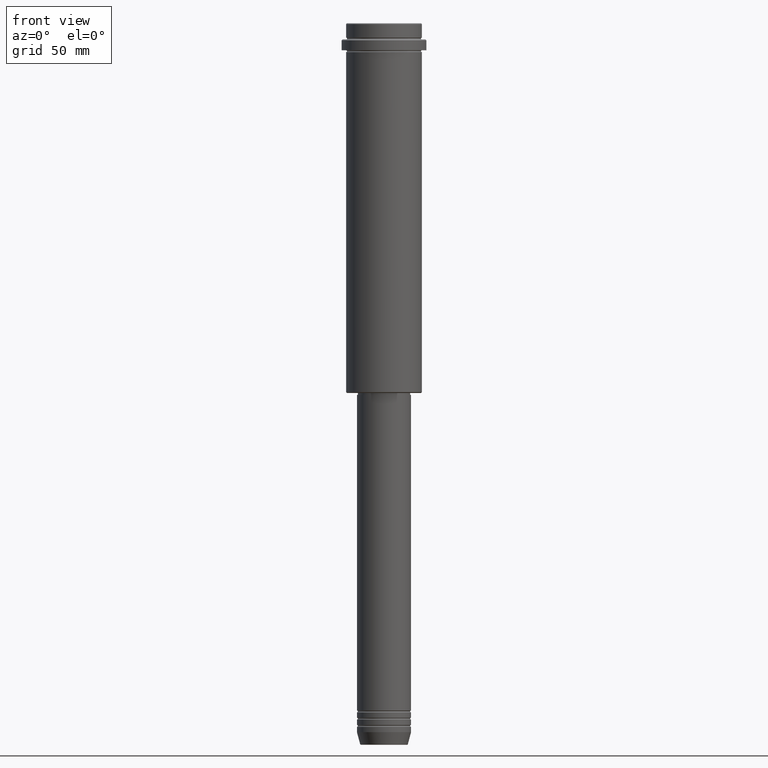
[diagram: clean part render]
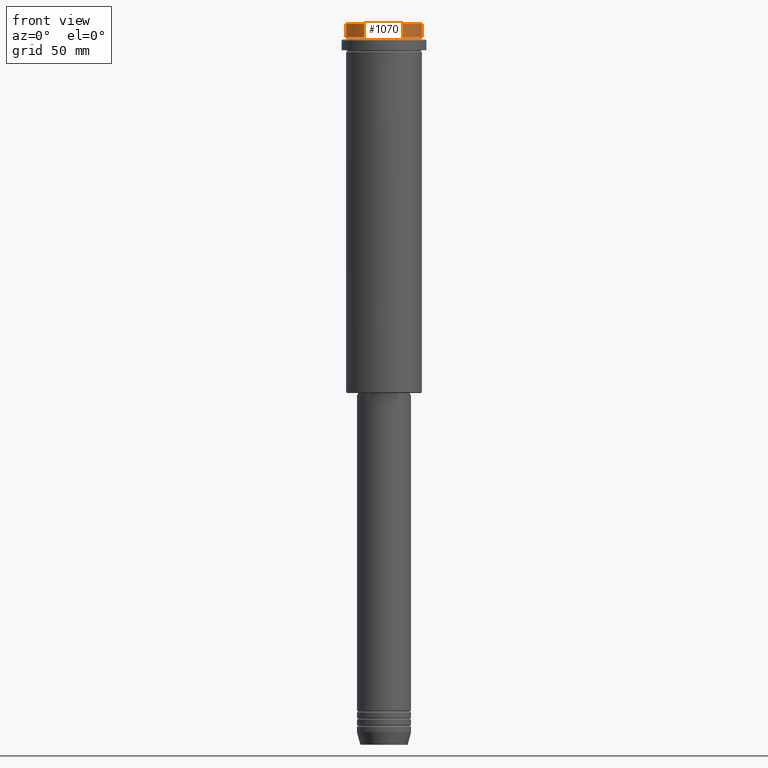
[diagram: same view with one face highlighted and labeled with its STEP entity id]
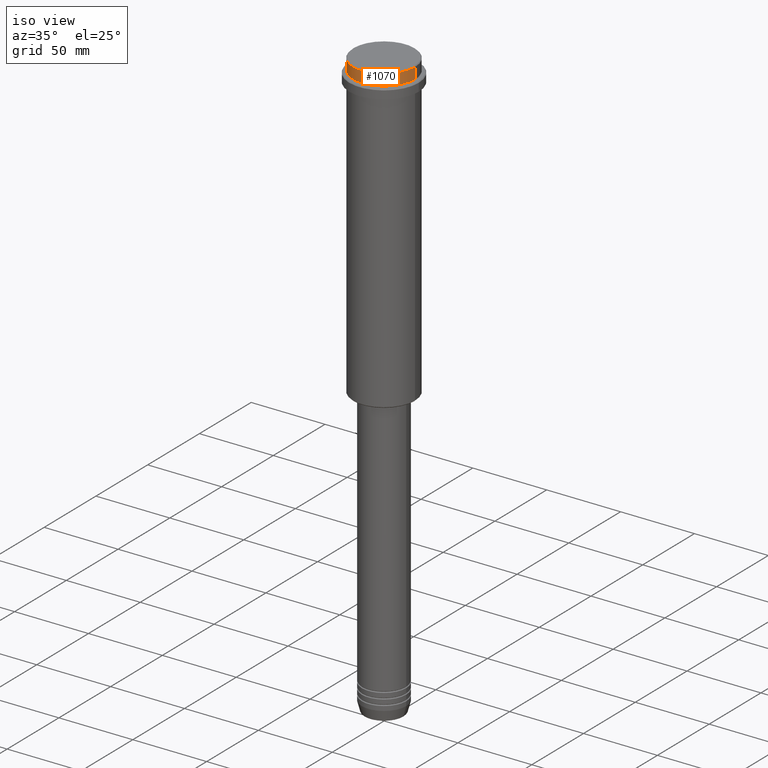
[diagram: same view with one face highlighted and labeled with its STEP entity id]
A machine part, front view. The second image highlights one B-rep face of the part: STEP entity #1070.
A second angle (iso view) of the same face is appended — the face is thin or edge-on in the first view.
In plain terms, the highlighted cylindrical surface (partial cylindrical patch) has radius 21 mm, axis along (-0, -0, 1).
Its self-contained STEP definition (entity closure, byte-faithful):
#15 = VECTOR ( 'NONE', #1081, 1000.000000000000000 ) ;
#34 = DIRECTION ( 'NONE',  ( -0.000000000000000000, -0.000000000000000000, 1.000000000000000000 ) ) ;
#42 = CARTESIAN_POINT ( 'NONE',  ( -20.99999999999999645, 2.571758278209441267E-15, 0.000000000000000000 ) ) ;
#45 = DIRECTION ( 'NONE',  ( 1.000000000000000000, 0.000000000000000000, 0.000000000000000000 ) ) ;
#128 = VERTEX_POINT ( 'NONE', #410 ) ;
#149 = DIRECTION ( 'NONE',  ( -0.000000000000000000, -0.000000000000000000, 1.000000000000000000 ) ) ;
#203 = LINE ( 'NONE', #659, #15 ) ;
#232 = DIRECTION ( 'NONE',  ( 1.000000000000000000, 0.000000000000000000, 0.000000000000000000 ) ) ;
#337 = EDGE_CURVE ( 'NONE', #376, #128, #203, .T. ) ;
#340 = CARTESIAN_POINT ( 'NONE',  ( 20.99999999999999645, 0.000000000000000000, -7.999999999999998224 ) ) ;
#363 = DIRECTION ( 'NONE',  ( 1.000000000000000000, 0.000000000000000000, 0.000000000000000000 ) ) ;
#365 = CYLINDRICAL_SURFACE ( 'NONE', #792, 20.99999999999999645 ) ;
#376 = VERTEX_POINT ( 'NONE', #340 ) ;
#403 = ORIENTED_EDGE ( 'NONE', *, *, #711, .T. ) ;
#410 = CARTESIAN_POINT ( 'NONE',  ( 20.99999999999999645, 0.000000000000000000, -0.4999999999999795164 ) ) ;
#576 = DIRECTION ( 'NONE',  ( -0.000000000000000000, -0.000000000000000000, 1.000000000000000000 ) ) ;
#649 = EDGE_LOOP ( 'NONE', ( #857, #847, #1402, #403 ) ) ;
#659 = CARTESIAN_POINT ( 'NONE',  ( 20.99999999999999645, 0.000000000000000000, 0.000000000000000000 ) ) ;
#689 = CARTESIAN_POINT ( 'NONE',  ( 0.000000000000000000, 0.000000000000000000, 0.000000000000000000 ) ) ;
#691 = DIRECTION ( 'NONE',  ( 0.000000000000000000, 0.000000000000000000, -1.000000000000000000 ) ) ;
#711 = EDGE_CURVE ( 'NONE', #128, #991, #836, .T. ) ;
#722 = VECTOR ( 'NONE', #576, 1000.000000000000000 ) ;
#792 = AXIS2_PLACEMENT_3D ( 'NONE', #689, #149, #45 ) ;
#798 = LINE ( 'NONE', #42, #722 ) ;
#836 = CIRCLE ( 'NONE', #1412, 20.99999999999999645 ) ;
#845 = CARTESIAN_POINT ( 'NONE',  ( -20.99999999999999645, 2.571758278209441267E-15, -7.999999999999998224 ) ) ;
#847 = ORIENTED_EDGE ( 'NONE', *, *, #1397, .T. ) ;
#857 = ORIENTED_EDGE ( 'NONE', *, *, #1403, .F. ) ;
#991 = VERTEX_POINT ( 'NONE', #1263 ) ;
#1070 = ADVANCED_FACE ( 'NONE', ( #1349 ), #365, .T. ) ;
#1081 = DIRECTION ( 'NONE',  ( -0.000000000000000000, -0.000000000000000000, 1.000000000000000000 ) ) ;
#1118 = CIRCLE ( 'NONE', #1346, 20.99999999999999645 ) ;
#1126 = CARTESIAN_POINT ( 'NONE',  ( 0.000000000000000000, 0.000000000000000000, -7.999999999999998224 ) ) ;
#1129 = VERTEX_POINT ( 'NONE', #845 ) ;
#1196 = CARTESIAN_POINT ( 'NONE',  ( 0.000000000000000000, 0.000000000000000000, -0.4999999999999795164 ) ) ;
#1263 = CARTESIAN_POINT ( 'NONE',  ( -20.99999999999999645, 2.571758278209441267E-15, -0.4999999999999795164 ) ) ;
#1346 = AXIS2_PLACEMENT_3D ( 'NONE', #1126, #34, #363 ) ;
#1349 = FACE_OUTER_BOUND ( 'NONE', #649, .T. ) ;
#1397 = EDGE_CURVE ( 'NONE', #1129, #376, #1118, .T. ) ;
#1402 = ORIENTED_EDGE ( 'NONE', *, *, #337, .T. ) ;
#1403 = EDGE_CURVE ( 'NONE', #1129, #991, #798, .T. ) ;
#1412 = AXIS2_PLACEMENT_3D ( 'NONE', #1196, #691, #232 ) ;